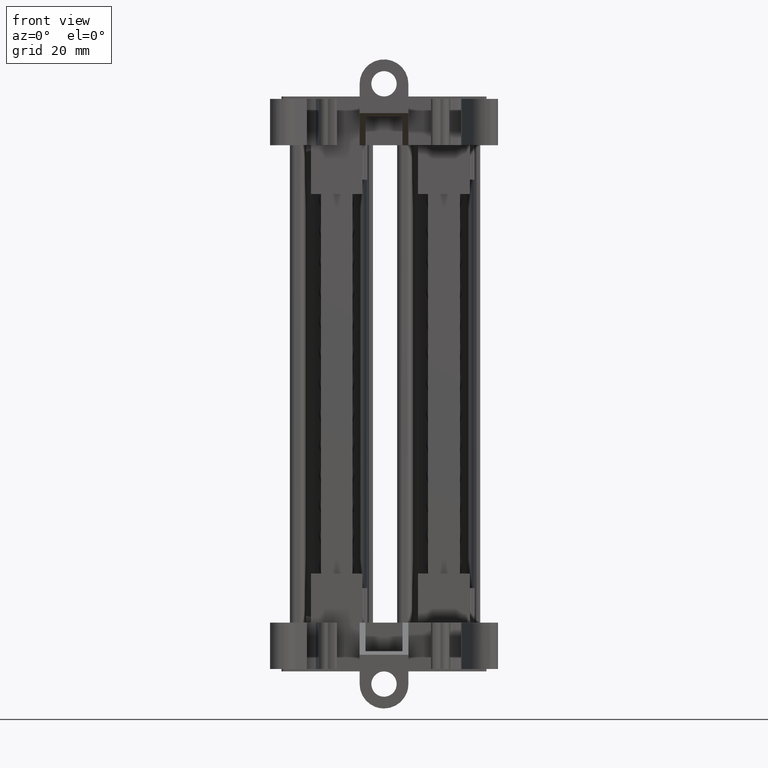
[diagram: clean part render]
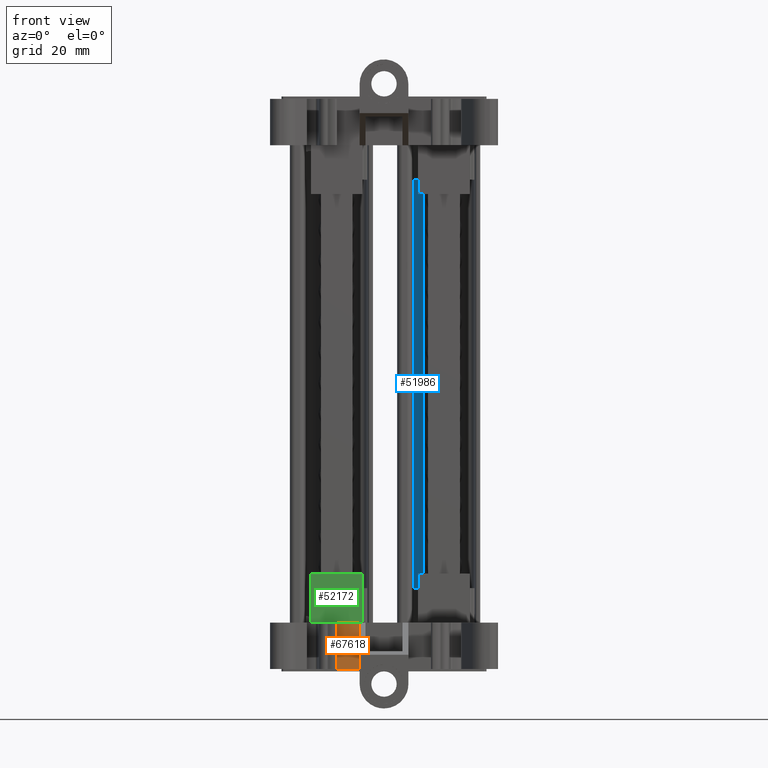
[diagram: same view with three faces highlighted in distinct colors, each labeled with its STEP entity id]
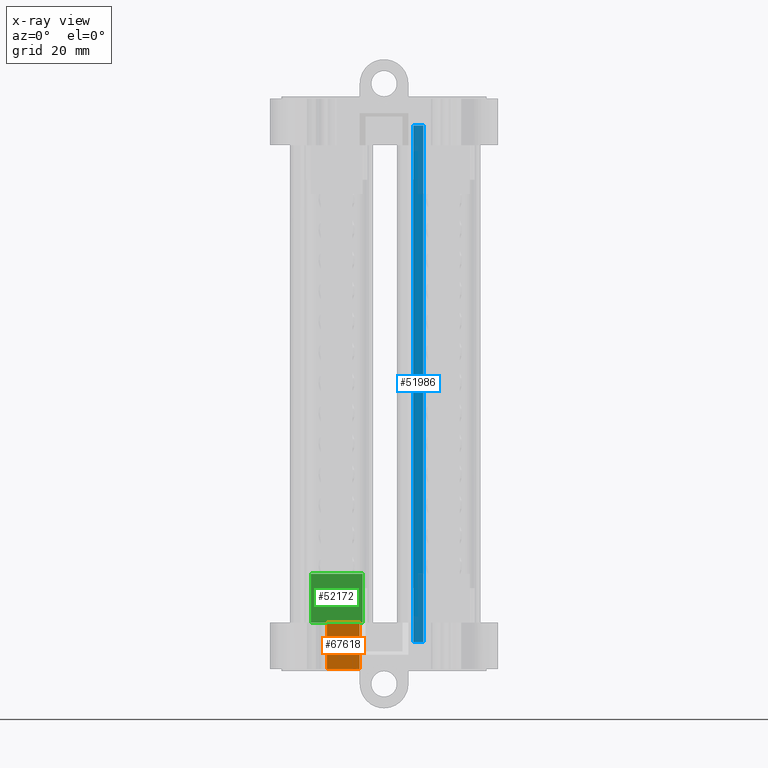
[diagram: x-ray of the same camera — body ghosted, the three highlighted faces saturated]
A machine part, front view with three faces highlighted in distinct colors.
The next image is the same camera in x-ray (body ghosted, the three faces saturated) — at least one of them is partly hidden behind the body in this view.
Their STEP definitions:

[orange] entity #67618 — the highlighted planar face has unit normal (0, 1, -0).
#699 = B_SPLINE_CURVE_WITH_KNOTS ( 'NONE', 3,
 ( #12422, #12435, #12427, #12449 ),
 .UNSPECIFIED., .F., .F.,
 ( 4, 4 ),
 ( 0.0000000000000000000, 1.000000000000000000 ),
 .UNSPECIFIED. ) ;
#10037 = CARTESIAN_POINT ( 'NONE',  ( -51.80778926014686200, 11.22264432959170600, -32.09224290364846200 ) ) ;
#12328 = DIRECTION ( 'NONE',  ( 1.756949432570529700E-030, -3.873654763156722800E-046, -1.000000000000000000 ) ) ;
#12340 = LINE ( 'NONE', #12360, #66225 ) ;
#12360 = CARTESIAN_POINT ( 'NONE',  ( -51.80778926014686200, 11.22264432959170600, -44.65514771224241000 ) ) ;
#12422 = CARTESIAN_POINT ( 'NONE',  ( -58.51202813277652100, 11.22264432959170600, -32.09224290364846200 ) ) ;
#12427 = CARTESIAN_POINT ( 'NONE',  ( -54.04253555102342000, 11.22264432959170600, -32.09224290364846200 ) ) ;
#12435 = CARTESIAN_POINT ( 'NONE',  ( -56.27728184189996300, 11.22264432959170600, -32.09224290364846200 ) ) ;
#12449 = CARTESIAN_POINT ( 'NONE',  ( -51.80778926014686200, 11.22264432959170600, -32.09224290364846200 ) ) ;
#13543 = LINE ( 'NONE', #13547, #35583 ) ;
#13547 = CARTESIAN_POINT ( 'NONE',  ( -58.51202813277651400, 11.22264432959170800, -63.00097695653850100 ) ) ;
#13550 = DIRECTION ( 'NONE',  ( 0.0000000000000000000, 0.0000000000000000000, 1.000000000000000000 ) ) ;
#14516 = CARTESIAN_POINT ( 'NONE',  ( -35.13299101561717900, 11.22264432959170600, -41.56427430695350000 ) ) ;
#14523 = DIRECTION ( 'NONE',  ( -1.000000000000000000, 7.398150456059950500E-017, 0.0000000000000000000 ) ) ;
#14547 = LINE ( 'NONE', #14516, #35735 ) ;
#35583 = VECTOR ( 'NONE', #13550, 1000.000000000000000 ) ;
#35660 = AXIS2_PLACEMENT_3D ( 'NONE', #98210, #98239, #98207 ) ;
#35735 = VECTOR ( 'NONE', #14523, 1000.000000000000000 ) ;
#37027 = EDGE_CURVE ( 'NONE', #71138, #62781, #12340, .T. ) ;
#37065 = EDGE_CURVE ( 'NONE', #62718, #71138, #699, .T. ) ;
#56846 = EDGE_LOOP ( 'NONE', ( #77705, #77748, #77695, #77691 ) ) ;
#62718 = VERTEX_POINT ( 'NONE', #75889 ) ;
#62781 = VERTEX_POINT ( 'NONE', #76009 ) ;
#62791 = VERTEX_POINT ( 'NONE', #76023 ) ;
#66225 = VECTOR ( 'NONE', #12328, 1000.000000000000000 ) ;
#67618 = ADVANCED_FACE ( 'NONE', ( #98192 ), #98225, .F. ) ;
#71138 = VERTEX_POINT ( 'NONE', #10037 ) ;
#75889 = CARTESIAN_POINT ( 'NONE',  ( -58.51202813277652100, 11.22264432959170600, -32.09224290364846200 ) ) ;
#76009 = CARTESIAN_POINT ( 'NONE',  ( -51.80778926014686200, 11.22264432959170600, -41.56427430695350000 ) ) ;
#76023 = CARTESIAN_POINT ( 'NONE',  ( -58.51202813277651400, 11.22264432959170600, -41.56427430695350000 ) ) ;
#77691 = ORIENTED_EDGE ( 'NONE', *, *, #37065, .F. ) ;
#77695 = ORIENTED_EDGE ( 'NONE', *, *, #37027, .F. ) ;
#77705 = ORIENTED_EDGE ( 'NONE', *, *, #83738, .F. ) ;
#77748 = ORIENTED_EDGE ( 'NONE', *, *, #83952, .F. ) ;
#83738 = EDGE_CURVE ( 'NONE', #62791, #62718, #13543, .T. ) ;
#83952 = EDGE_CURVE ( 'NONE', #62781, #62791, #14547, .T. ) ;
#98192 = FACE_OUTER_BOUND ( 'NONE', #56846, .T. ) ;
#98207 = DIRECTION ( 'NONE',  ( -1.000000000000000000, 7.398150456059950500E-017, 0.0000000000000000000 ) ) ;
#98210 = CARTESIAN_POINT ( 'NONE',  ( -35.13299101561717900, 11.22264432959170600, -63.00097695653850100 ) ) ;
#98225 = PLANE ( 'NONE',  #35660 ) ;
#98239 = DIRECTION ( 'NONE',  ( 7.398150456059950500E-017, 1.000000000000000000, -0.0000000000000000000 ) ) ;

[blue] entity #51986 — the highlighted cylindrical surface (edge-blend (fillet) strip) has radius 2.0067 mm, axis along (-0, -0, 1).
#8914 = AXIS2_PLACEMENT_3D ( 'NONE', #22424, #22439, #22419 ) ;
#10298 = CARTESIAN_POINT ( 'NONE',  ( -38.79612651084012500, 47.51594552318125200, 69.47218928989241200 ) ) ;
#10306 = CARTESIAN_POINT ( 'NONE',  ( -38.79612651084192300, 47.51594552318294300, -36.09779384098943900 ) ) ;
#10323 = CARTESIAN_POINT ( 'NONE',  ( -40.80204855958533000, 45.45256647769646500, -36.09779384098949600 ) ) ;
#10326 = CARTESIAN_POINT ( 'NONE',  ( -40.80204855958605500, 45.45256647769564800, 69.47218928989244100 ) ) ;
#16066 = VECTOR ( 'NONE', #90969, 1000.000000000000000 ) ;
#16546 = CIRCLE ( 'NONE', #16548, 2.006722024510000600 ) ;
#16548 = AXIS2_PLACEMENT_3D ( 'NONE', #95249, #95225, #95252 ) ;
#16563 = AXIS2_PLACEMENT_3D ( 'NONE', #95395, #95424, #95405 ) ;
#16592 = VECTOR ( 'NONE', #95234, 1000.000000000000000 ) ;
#16615 = CIRCLE ( 'NONE', #16563, 2.006722024510000600 ) ;
#21891 = ORIENTED_EDGE ( 'NONE', *, *, #67383, .F. ) ;
#21926 = ORIENTED_EDGE ( 'NONE', *, *, #67414, .F. ) ;
#21981 = ORIENTED_EDGE ( 'NONE', *, *, #67161, .F. ) ;
#22025 = ORIENTED_EDGE ( 'NONE', *, *, #67379, .T. ) ;
#22403 = FACE_OUTER_BOUND ( 'NONE', #56395, .T. ) ;
#22417 = CYLINDRICAL_SURFACE ( 'NONE', #8914, 2.006722024510000600 ) ;
#22419 = DIRECTION ( 'NONE',  ( 0.0000000000000000000, -1.000000000000000000, -1.642466950628471600E-014 ) ) ;
#22424 = CARTESIAN_POINT ( 'NONE',  ( -38.79612651084411800, 45.50922349867214200, 14.63101413971032400 ) ) ;
#22439 = DIRECTION ( 'NONE',  ( -6.982962677686750300E-015, -1.604252062634165100E-014, 1.000000000000000000 ) ) ;
#51986 = ADVANCED_FACE ( 'NONE', ( #22403 ), #22417, .F. ) ;
#56395 = EDGE_LOOP ( 'NONE', ( #21981, #22025, #21891, #21926 ) ) ;
#67161 = EDGE_CURVE ( 'NONE', #73564, #73569, #90973, .T. ) ;
#67379 = EDGE_CURVE ( 'NONE', #73564, #73788, #16546, .T. ) ;
#67383 = EDGE_CURVE ( 'NONE', #73770, #73788, #95227, .T. ) ;
#67414 = EDGE_CURVE ( 'NONE', #73569, #73770, #16615, .T. ) ;
#73564 = VERTEX_POINT ( 'NONE', #10298 ) ;
#73569 = VERTEX_POINT ( 'NONE', #10306 ) ;
#73770 = VERTEX_POINT ( 'NONE', #10323 ) ;
#73788 = VERTEX_POINT ( 'NONE', #10326 ) ;
#90969 = DIRECTION ( 'NONE',  ( 3.229646657839732600E-028, 1.604252062634179600E-014, -1.000000000000000000 ) ) ;
#90973 = LINE ( 'NONE', #91008, #16066 ) ;
#91008 = CARTESIAN_POINT ( 'NONE',  ( -38.79612651084011800, 47.51594552318213300, 14.63101413971032400 ) ) ;
#95225 = DIRECTION ( 'NONE',  ( -6.982962677686750300E-015, -1.604252062634165100E-014, 1.000000000000000000 ) ) ;
#95227 = LINE ( 'NONE', #95233, #16592 ) ;
#95233 = CARTESIAN_POINT ( 'NONE',  ( -40.80204855958567100, 45.45256647769653600, 14.63101413971032400 ) ) ;
#95234 = DIRECTION ( 'NONE',  ( -6.700897813688195400E-015, 1.169646064375974700E-016, 1.000000000000000000 ) ) ;
#95249 = CARTESIAN_POINT ( 'NONE',  ( -38.79612651084450200, 45.50922349867126100, 69.47218928989245500 ) ) ;
#95252 = DIRECTION ( 'NONE',  ( 0.0000000000000000000, -1.000000000000000000, -1.383130063687133900E-014 ) ) ;
#95395 = CARTESIAN_POINT ( 'NONE',  ( -38.79612651084376300, 45.50922349867295200, -36.09779384098947500 ) ) ;
#95405 = DIRECTION ( 'NONE',  ( 0.0000000000000000000, -1.000000000000000000, -1.728912579608917200E-014 ) ) ;
#95424 = DIRECTION ( 'NONE',  ( -6.982962677686750300E-015, -1.604252062634165100E-014, 1.000000000000000000 ) ) ;

[green] entity #52172 — the highlighted planar face has unit normal (-0, -1, 0).
#9117 = AXIS2_PLACEMENT_3D ( 'NONE', #24592, #24591, #24603 ) ;
#12629 = ORIENTED_EDGE ( 'NONE', *, *, #59266, .T. ) ;
#12638 = ORIENTED_EDGE ( 'NONE', *, *, #59255, .F. ) ;
#12678 = ORIENTED_EDGE ( 'NONE', *, *, #59280, .T. ) ;
#12707 = ORIENTED_EDGE ( 'NONE', *, *, #59277, .F. ) ;
#21627 = CARTESIAN_POINT ( 'NONE',  ( -51.22521002070131100, 11.42205551702878600, -32.09224290364846900 ) ) ;
#21773 = CARTESIAN_POINT ( 'NONE',  ( -51.22521002070188700, 11.42205551702882400, -22.12168353174845600 ) ) ;
#21783 = CARTESIAN_POINT ( 'NONE',  ( -61.77805005991850600, 11.42205551702956300, -32.09224290364846900 ) ) ;
#21813 = CARTESIAN_POINT ( 'NONE',  ( -61.77805005991850600, 11.42205551702949200, -22.12168353174845600 ) ) ;
#24522 = FACE_OUTER_BOUND ( 'NONE', #61094, .T. ) ;
#24557 = PLANE ( 'NONE',  #9117 ) ;
#24591 = DIRECTION ( 'NONE',  ( -7.419278866477789400E-014, -1.000000000000000000, 7.965850201685501300E-015 ) ) ;
#24592 = CARTESIAN_POINT ( 'NONE',  ( -64.51995388718779600, 11.42205551702894400, -98.64254787400605600 ) ) ;
#24603 = DIRECTION ( 'NONE',  ( 1.000000000000000000, -7.419278866477789400E-014, 0.0000000000000000000 ) ) ;
#27634 = VECTOR ( 'NONE', #60980, 1000.000000000000000 ) ;
#27667 = VECTOR ( 'NONE', #61270, 1000.000000000000000 ) ;
#27708 = VECTOR ( 'NONE', #61045, 1000.000000000000000 ) ;
#47482 = VERTEX_POINT ( 'NONE', #21627 ) ;
#47548 = VERTEX_POINT ( 'NONE', #21773 ) ;
#47554 = VERTEX_POINT ( 'NONE', #21783 ) ;
#47570 = VERTEX_POINT ( 'NONE', #21813 ) ;
#52172 = ADVANCED_FACE ( 'NONE', ( #24522 ), #24557, .T. ) ;
#59255 = EDGE_CURVE ( 'NONE', #47554, #47570, #60926, .T. ) ;
#59266 = EDGE_CURVE ( 'NONE', #47554, #47482, #103878, .T. ) ;
#59277 = EDGE_CURVE ( 'NONE', #47548, #47482, #61154, .T. ) ;
#59280 = EDGE_CURVE ( 'NONE', #47548, #47570, #61207, .T. ) ;
#60926 = LINE ( 'NONE', #60997, #27634 ) ;
#60980 = DIRECTION ( 'NONE',  ( -3.469446952988439500E-018, 4.557183009288460000E-031, 1.000000000000000000 ) ) ;
#60997 = CARTESIAN_POINT ( 'NONE',  ( -61.77805005991850600, 11.42205551702963400, 47.32994441192240500 ) ) ;
#61040 = CARTESIAN_POINT ( 'NONE',  ( -51.22521002070193700, 11.42205551702925300, 47.32994441192240500 ) ) ;
#61045 = DIRECTION ( 'NONE',  ( 3.469446950784518900E-018, 5.041723658430198100E-031, -1.000000000000000000 ) ) ;
#61051 = CARTESIAN_POINT ( 'NONE',  ( -61.77805005991850600, 11.42205551702956300, -32.09224290364846900 ) ) ;
#61059 = CARTESIAN_POINT ( 'NONE',  ( -58.26043671351279600, 11.42205551702901200, -32.09224290364848300 ) ) ;
#61081 = CARTESIAN_POINT ( 'NONE',  ( -54.74282336710705700, 11.42205551702874900, -32.09224290364848300 ) ) ;
#61094 = EDGE_LOOP ( 'NONE', ( #12678, #12638, #12629, #12707 ) ) ;
#61140 = CARTESIAN_POINT ( 'NONE',  ( -51.22521002070131100, 11.42205551702878600, -32.09224290364846900 ) ) ;
#61154 = LINE ( 'NONE', #61040, #27708 ) ;
#61207 = LINE ( 'NONE', #61257, #27667 ) ;
#61257 = CARTESIAN_POINT ( 'NONE',  ( -64.51995388718779600, 11.42205551702955400, -22.12168353174845200 ) ) ;
#61270 = DIRECTION ( 'NONE',  ( -1.000000000000000000, 7.419278866477789400E-014, -0.0000000000000000000 ) ) ;
#103878 = B_SPLINE_CURVE_WITH_KNOTS ( 'NONE', 3,
 ( #61051, #61059, #61081, #61140 ),
 .UNSPECIFIED., .F., .F.,
 ( 4, 4 ),
 ( 0.0000000000000000000, 1.000000000000000000 ),
 .UNSPECIFIED. ) ;